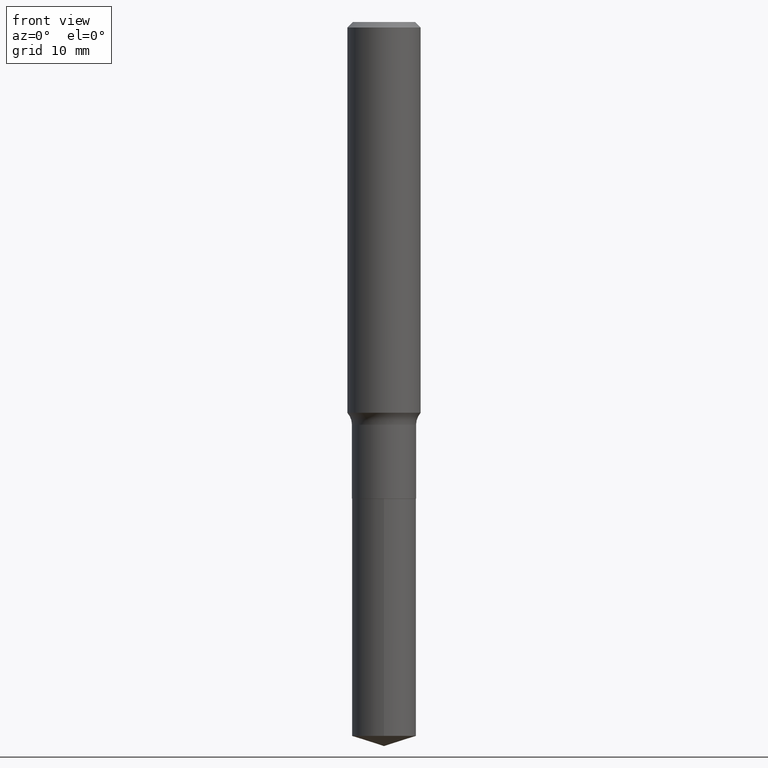
[diagram: clean part render]
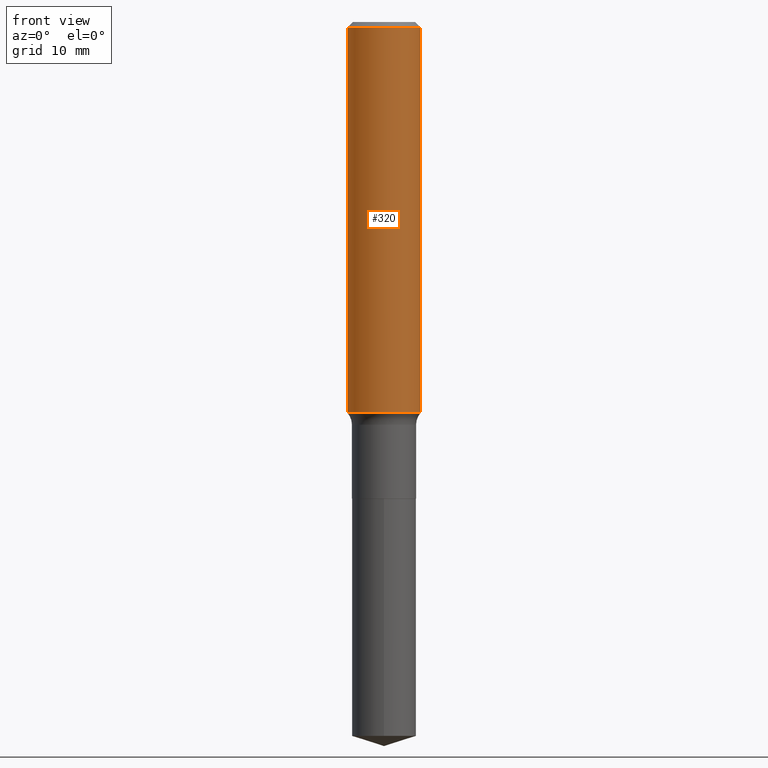
[diagram: same view with one face highlighted and labeled with its STEP entity id]
A machine part, front view. The second image highlights one B-rep face of the part: STEP entity #320.
In plain terms, the highlighted cylindrical surface (partial cylindrical patch) has radius 4.0005 mm, axis along (-0, 0, 1).
Its self-contained STEP definition (entity closure, byte-faithful):
#21 = VECTOR ( 'NONE', #394, 39.37007874015748143 ) ;
#25 = VERTEX_POINT ( 'NONE', #43 ) ;
#29 = EDGE_CURVE ( 'NONE', #25, #274, #228, .T. ) ;
#43 = CARTESIAN_POINT ( 'NONE',  ( -0.1575000000000002232, -4.741283607490324763E-15, -1.678481952950733325 ) ) ;
#47 = CARTESIAN_POINT ( 'NONE',  ( 5.777420054612421980E-31, -8.248624663016985234E-17, -0.02362500000000015282 ) ) ;
#55 = AXIS2_PLACEMENT_3D ( 'NONE', #379, #170, #327 ) ;
#57 = EDGE_CURVE ( 'NONE', #274, #175, #142, .T. ) ;
#112 = CARTESIAN_POINT ( 'NONE',  ( 0.1575000000000002232, -6.960205038048073791E-15, -1.678481952950733325 ) ) ;
#137 = ORIENTED_EDGE ( 'NONE', *, *, #412, .T. ) ;
#142 = CIRCLE ( 'NONE', #318, 0.1575000000000000011 ) ;
#162 = DIRECTION ( 'NONE',  ( -2.445468806185136877E-29, 3.491481338843145188E-15, 1.000000000000000000 ) ) ;
#170 = DIRECTION ( 'NONE',  ( -2.445468806185136597E-29, 3.491481338843145583E-15, 1.000000000000000000 ) ) ;
#175 = VERTEX_POINT ( 'NONE', #199 ) ;
#180 = CARTESIAN_POINT ( 'NONE',  ( -0.1575000000000000011, -1.852332522649168278E-15, -0.02362500000000015282 ) ) ;
#192 = CARTESIAN_POINT ( 'NONE',  ( 0.000000000000000000, 0.000000000000000000, 0.000000000000000000 ) ) ;
#193 = CARTESIAN_POINT ( 'NONE',  ( -0.1575000000000000844, 1.119104808822158392E-15, -7.747322767151481189E-30 ) ) ;
#194 = CYLINDRICAL_SURFACE ( 'NONE', #232, 0.1575000000000000844 ) ;
#196 = LINE ( 'NONE', #231, #21 ) ;
#197 = DIRECTION ( 'NONE',  ( 1.000000000000000000, -6.982962677686267499E-15, 4.876176775795936353E-29 ) ) ;
#199 = CARTESIAN_POINT ( 'NONE',  ( 0.1575000000000000011, -1.182302868365756679E-15, -0.02362500000000015282 ) ) ;
#203 = DIRECTION ( 'NONE',  ( -2.445468806185136597E-29, 3.491481338843145583E-15, 1.000000000000000000 ) ) ;
#208 = DIRECTION ( 'NONE',  ( 1.000000000000000000, -6.982962677686265922E-15, 0.000000000000000000 ) ) ;
#228 = LINE ( 'NONE', #193, #283 ) ;
#231 = CARTESIAN_POINT ( 'NONE',  ( 0.1575000000000000844, -1.099816621735587677E-15, 7.679978421878603638E-30 ) ) ;
#232 = AXIS2_PLACEMENT_3D ( 'NONE', #192, #325, #197 ) ;
#241 = ORIENTED_EDGE ( 'NONE', *, *, #57, .F. ) ;
#264 = CIRCLE ( 'NONE', #55, 0.1575000000000002232 ) ;
#274 = VERTEX_POINT ( 'NONE', #180 ) ;
#283 = VECTOR ( 'NONE', #162, 39.37007874015748143 ) ;
#294 = ORIENTED_EDGE ( 'NONE', *, *, #441, .T. ) ;
#317 = VERTEX_POINT ( 'NONE', #112 ) ;
#318 = AXIS2_PLACEMENT_3D ( 'NONE', #47, #203, #208 ) ;
#320 = ADVANCED_FACE ( 'NONE', ( #375 ), #194, .T. ) ;
#325 = DIRECTION ( 'NONE',  ( -2.445468806185136597E-29, 3.491481338843145583E-15, 1.000000000000000000 ) ) ;
#327 = DIRECTION ( 'NONE',  ( 1.000000000000000000, -6.982962677686271444E-15, 0.000000000000000000 ) ) ;
#375 = FACE_OUTER_BOUND ( 'NONE', #436, .T. ) ;
#379 = CARTESIAN_POINT ( 'NONE',  ( 4.104675257685727015E-29, -5.860388416312484733E-15, -1.678481952950733325 ) ) ;
#381 = ORIENTED_EDGE ( 'NONE', *, *, #29, .F. ) ;
#394 = DIRECTION ( 'NONE',  ( -2.445468806185136877E-29, 3.491481338843145188E-15, 1.000000000000000000 ) ) ;
#412 = EDGE_CURVE ( 'NONE', #317, #175, #196, .T. ) ;
#436 = EDGE_LOOP ( 'NONE', ( #381, #294, #137, #241 ) ) ;
#441 = EDGE_CURVE ( 'NONE', #25, #317, #264, .T. ) ;